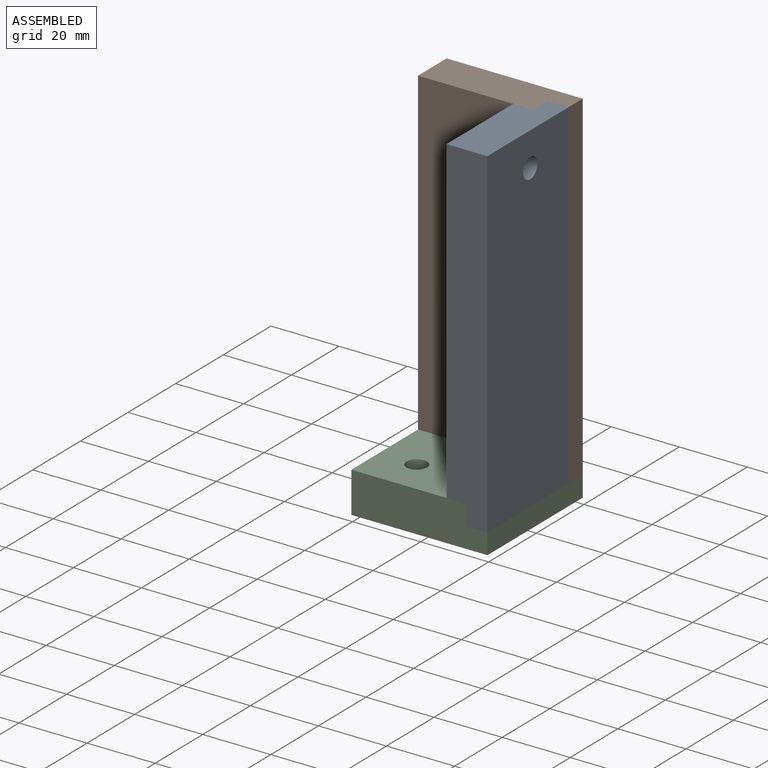
[diagram: assembled view]
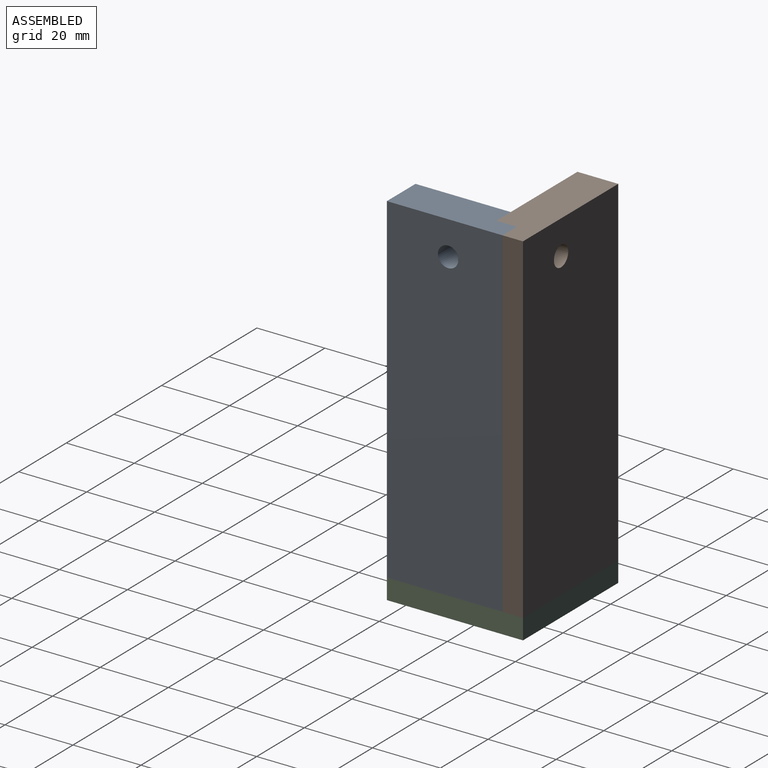
[diagram: assembled view, second angle]
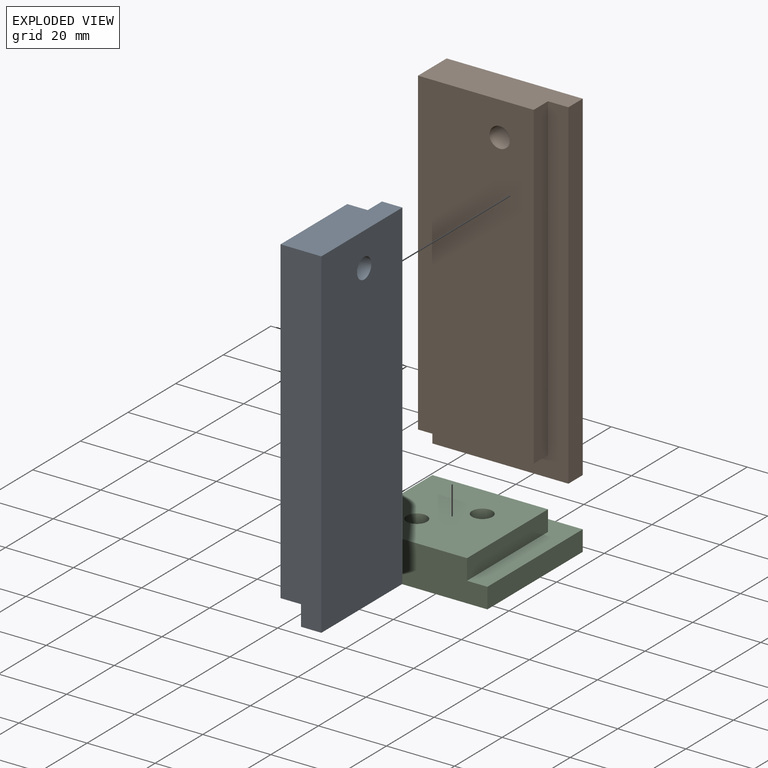
[diagram: exploded view]
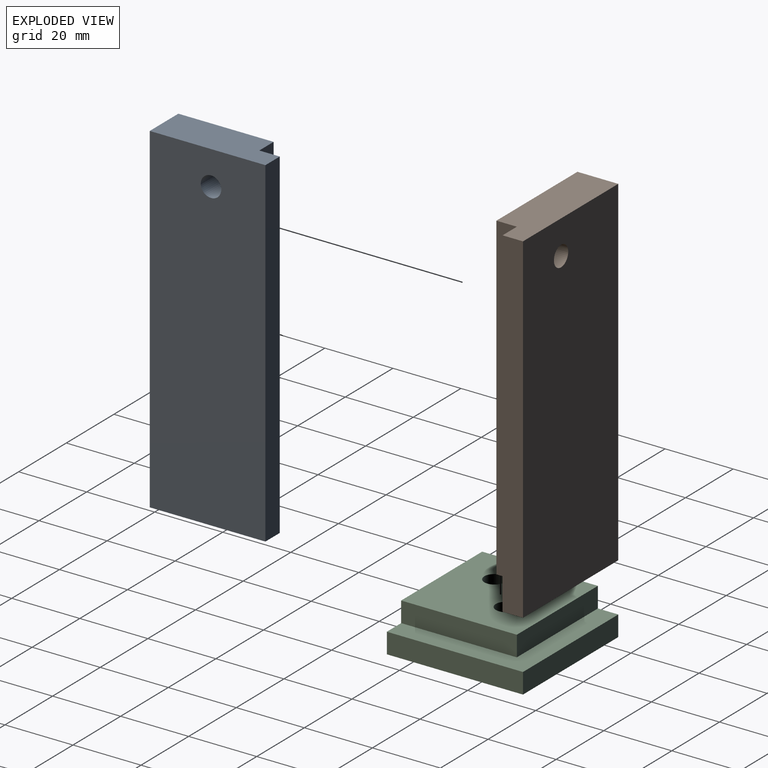
[diagram: exploded view, second angle]
ASSEMBLY  parts=3 mates=2
PART A: 10 faces, bbox 34x12x100 mm
  f0: plane 94x28mm, normal (0,1,0), area 2603.7mm2, adj f1,f2,f5,f7,f9
  f1: plane 34x12mm, normal (0,0,1), area 372mm2, adj f0,f2,f4,f6,f8,f9
  f2: plane 100x12mm, normal (-1,0,0), area 1164mm2, adj f0,f1,f3,f6,f7,f8
  f3: plane 34x6mm, normal (0,0,-1), area 204mm2, adj f2,f4,f6,f8
  f4: plane 100x6mm, normal (1,0,0), area 600mm2, adj f1,f3,f6,f8
  f5: cylinder r=3mm len=12mm, axis (0,1,0), area 226.2mm2, adj f0,f6
  f6: plane 100x34mm, normal (0,-1,0), area 3371.7mm2, adj f1,f2,f3,f4,f5
  f7: plane 28x6mm, normal (0,0,-1), area 168mm2, adj f0,f2,f8,f9
  f8: plane 100x34mm, normal (0,1,0), area 768mm2, adj f1,f2,f3,f4,f7,f9
  f9: plane 94x6mm, normal (1,0,0), area 564mm2, adj f0,f1,f7,f8
PART B: 10 faces, bbox 40x12x100 mm
  f0: plane 100x12mm, normal (-1,0,0), area 1164mm2, adj f1,f3,f5,f6,f8,f9
  f1: plane 40x6mm, normal (0,0,-1), area 240mm2, adj f0,f2,f5,f9
  f2: plane 100x6mm, normal (1,0,0), area 600mm2, adj f1,f3,f5,f9
  f3: plane 40x12mm, normal (0,0,1), area 444mm2, adj f0,f2,f5,f6,f7,f9
  f4: cylinder r=3mm len=12mm, axis (0,-1,0), area 226.2mm2, adj f5,f6
  f5: plane 100x40mm, normal (0,1,0), area 3971.7mm2, adj f0,f1,f2,f3,f4
  f6: plane 94x34mm, normal (0,-1,0), area 3167.7mm2, adj f0,f3,f4,f7,f8
  f7: plane 94x6mm, normal (1,0,0), area 564mm2, adj f3,f6,f8,f9
  f8: plane 34x6mm, normal (0,0,-1), area 204mm2, adj f0,f6,f7,f9
  f9: plane 100x40mm, normal (0,-1,0), area 804mm2, adj f0,f1,f2,f3,f7,f8
PART C: 11 faces, bbox 40x40x12 mm
  f0: plane 34x6mm, normal (0,1,0), area 204mm2, adj f1,f5,f6,f10
  f1: plane 34x6mm, normal (-1,0,0), area 204mm2, adj f0,f2,f6,f10
  f2: plane 40x12mm, normal (0,-1,0), area 444mm2, adj f1,f5,f6,f7,f9,f10
  f3: cylinder r=3mm len=12mm, axis (0,0,-1), area 226.2mm2, adj f6,f7
  f4: cylinder r=3mm len=12mm, axis (0,0,-1), area 226.2mm2, adj f6,f7
  f5: plane 40x12mm, normal (1,0,0), area 444mm2, adj f0,f2,f6,f7,f8,f10
  f6: plane 34x34mm, normal (0,0,1), area 1099.5mm2, adj f0,f1,f2,f3,f4,f5
  f7: plane 40x40mm, normal (0,0,-1), area 1543.5mm2, adj f2,f3,f4,f5,f8,f9
  f8: plane 40x6mm, normal (0,1,0), area 240mm2, adj f5,f7,f9,f10
  f9: plane 40x6mm, normal (-1,0,0), area 240mm2, adj f2,f7,f8,f10
  f10: plane 40x40mm, normal (0,0,1), area 444mm2, adj f0,f1,f2,f5,f8,f9
PLACE A rot(axis=(0,0,1),90deg) t=(-114.5,18.73,-14.67)mm
PLACE B t=(-52.29,-37.49,-14.67)mm
PLACE C rot(axis=(0,0,-1),90deg) t=(-131.43,-29.77,-60.64)mm
MATE fastened B.f9 <-> A.f4  axis (0,-1,0) through (-105.5,-31.49,45.36)mm
MATE fastened C.f10 <-> B.f1  axis (0,0,1) through (-142.5,-28.49,-54.64)mm
